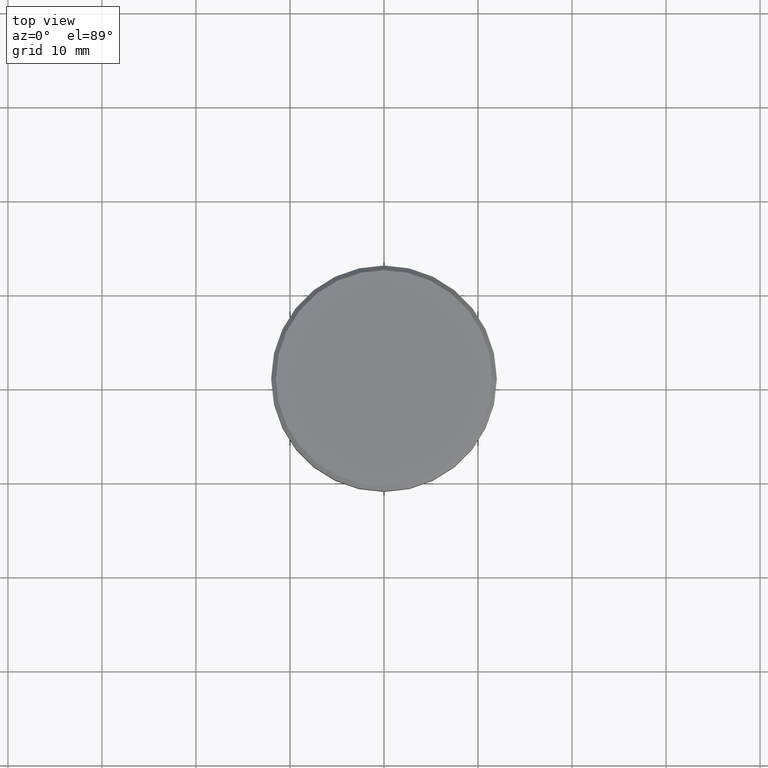
[diagram: clean part render]
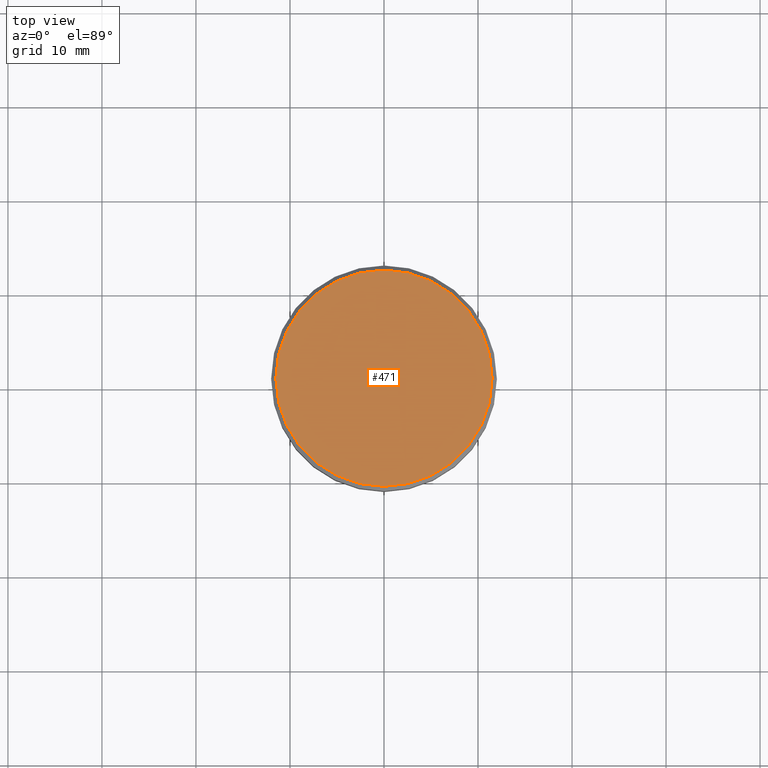
[diagram: same view with one face highlighted and labeled with its STEP entity id]
A machine part, top view. The second image highlights one B-rep face of the part: STEP entity #471.
In plain terms, the highlighted planar face has unit normal (0, -0, 1).
Its self-contained STEP definition (entity closure, byte-faithful):
#22 = EDGE_LOOP ( 'NONE', ( #872, #728 ) ) ;
#127 = PLANE ( 'NONE',  #989 ) ;
#155 = VERTEX_POINT ( 'NONE', #720 ) ;
#160 = CARTESIAN_POINT ( 'NONE',  ( 0.000000000000000000, 0.000000000000000000, 0.000000000000000000 ) ) ;
#221 = CARTESIAN_POINT ( 'NONE',  ( 0.000000000000000000, 0.000000000000000000, 0.000000000000000000 ) ) ;
#223 = CARTESIAN_POINT ( 'NONE',  ( 11.49999999999999822, 1.438959988998139963E-15, 0.000000000000000000 ) ) ;
#234 = FACE_OUTER_BOUND ( 'NONE', #22, .T. ) ;
#293 = AXIS2_PLACEMENT_3D ( 'NONE', #160, #493, #893 ) ;
#471 = ADVANCED_FACE ( 'NONE', ( #234 ), #127, .T. ) ;
#493 = DIRECTION ( 'NONE',  ( -0.000000000000000000, -0.000000000000000000, 1.000000000000000000 ) ) ;
#513 = VERTEX_POINT ( 'NONE', #223 ) ;
#561 = DIRECTION ( 'NONE',  ( 1.000000000000000000, 0.000000000000000000, 0.000000000000000000 ) ) ;
#674 = EDGE_CURVE ( 'NONE', #155, #513, #696, .T. ) ;
#696 = CIRCLE ( 'NONE', #293, 11.49999999999999822 ) ;
#720 = CARTESIAN_POINT ( 'NONE',  ( -11.49999999999999822, 0.000000000000000000, 0.000000000000000000 ) ) ;
#728 = ORIENTED_EDGE ( 'NONE', *, *, #910, .T. ) ;
#782 = CARTESIAN_POINT ( 'NONE',  ( 0.000000000000000000, 0.000000000000000000, 0.000000000000000000 ) ) ;
#821 = AXIS2_PLACEMENT_3D ( 'NONE', #221, #946, #863 ) ;
#863 = DIRECTION ( 'NONE',  ( 1.000000000000000000, 0.000000000000000000, 0.000000000000000000 ) ) ;
#872 = ORIENTED_EDGE ( 'NONE', *, *, #674, .T. ) ;
#893 = DIRECTION ( 'NONE',  ( 1.000000000000000000, 0.000000000000000000, 0.000000000000000000 ) ) ;
#910 = EDGE_CURVE ( 'NONE', #513, #155, #993, .T. ) ;
#946 = DIRECTION ( 'NONE',  ( -0.000000000000000000, -0.000000000000000000, 1.000000000000000000 ) ) ;
#989 = AXIS2_PLACEMENT_3D ( 'NONE', #782, #1028, #561 ) ;
#993 = CIRCLE ( 'NONE', #821, 11.49999999999999822 ) ;
#1028 = DIRECTION ( 'NONE',  ( 0.000000000000000000, -0.000000000000000000, 1.000000000000000000 ) ) ;